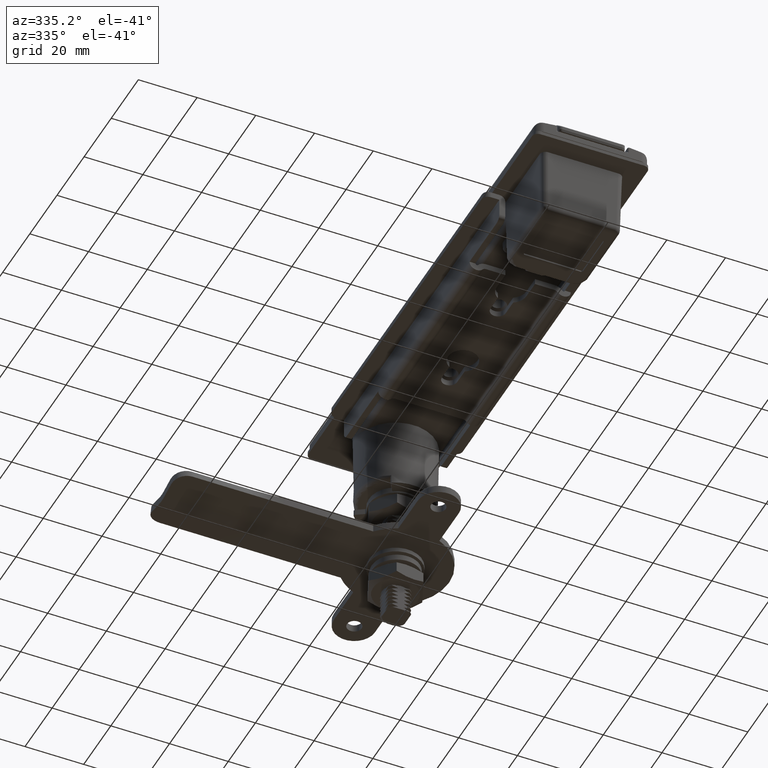
[diagram: clean part render]
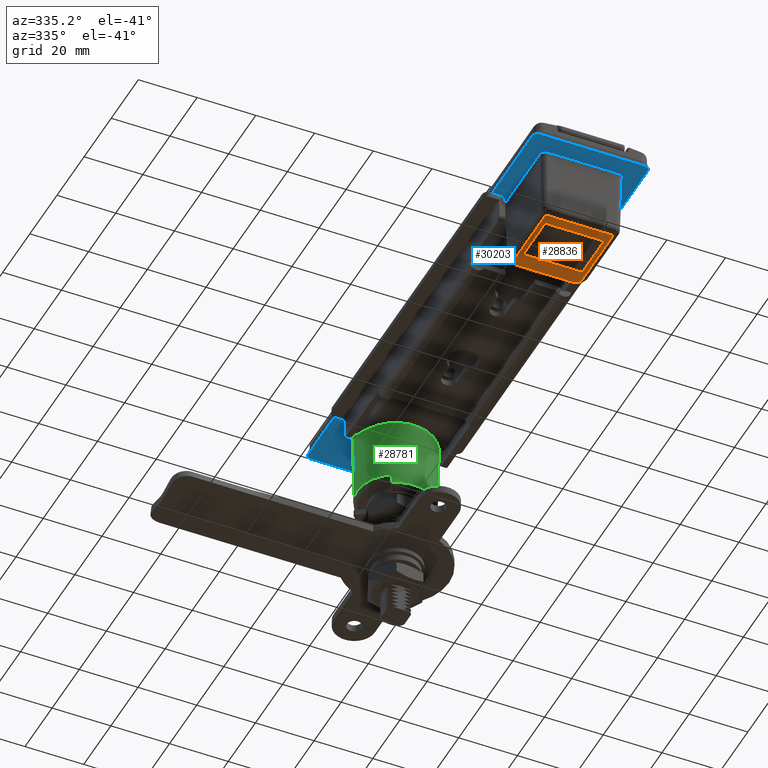
[diagram: same view with three faces highlighted in distinct colors, each labeled with its STEP entity id]
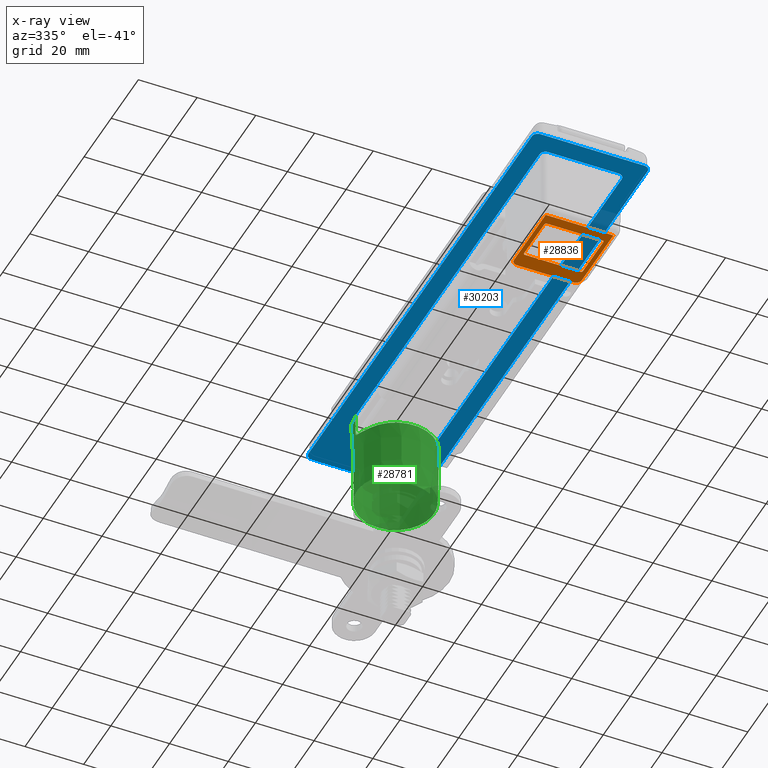
[diagram: x-ray of the same camera — body ghosted, the three highlighted faces saturated]
A machine part, auxiliary view with three faces highlighted in distinct colors.
The next image is the same camera in x-ray (body ghosted, the three faces saturated) — at least one of them is partly hidden behind the body in this view.
Their STEP definitions:

[orange] entity #28836 — the highlighted planar face has unit normal (0, 0, -1).
#2609=FACE_BOUND('',#5051,.T.);
#2722=ELLIPSE('',#30665,1.90065116860547,1.9);
#2728=ELLIPSE('',#30677,1.90065116860547,1.9);
#2918=PLANE('',#30713);
#3273=FACE_OUTER_BOUND('',#5050,.T.);
#5050=EDGE_LOOP('',(#19204,#19205,#19206,#19207,#19208,#19209));
#5051=EDGE_LOOP('',(#19210,#19211,#19212,#19213,#19214,#19215,#19216,#19217));
#6842=LINE('',#39239,#8618);
#6849=LINE('',#39257,#8625);
#6853=LINE('',#39269,#8629);
#6855=LINE('',#39276,#8631);
#6936=LINE('',#40492,#8712);
#6956=LINE('',#40864,#8732);
#6957=LINE('',#40869,#8733);
#6958=LINE('',#40871,#8734);
#8618=VECTOR('',#32859,19.0565076735056);
#8625=VECTOR('',#32874,19.0565076735056);
#8629=VECTOR('',#32886,15.184331811677);
#8631=VECTOR('',#32898,15.184331811677);
#8712=VECTOR('',#33173,19.2569243691889);
#8732=VECTOR('',#33293,23.385113118585);
#8733=VECTOR('',#33300,23.385113118585);
#8734=VECTOR('',#33303,23.0565076735055);
#10393=CIRCLE('',#30548,0.5);
#10395=CIRCLE('',#30552,0.5);
#10397=CIRCLE('',#30556,0.5);
#10399=CIRCLE('',#30560,0.5);
#11279=VERTEX_POINT('',#39232);
#11280=VERTEX_POINT('',#39234);
#11281=VERTEX_POINT('',#39238);
#11285=VERTEX_POINT('',#39247);
#11286=VERTEX_POINT('',#39249);
#11288=VERTEX_POINT('',#39255);
#11290=VERTEX_POINT('',#39261);
#11292=VERTEX_POINT('',#39267);
#11438=VERTEX_POINT('',#40489);
#11439=VERTEX_POINT('',#40491);
#11442=VERTEX_POINT('',#40564);
#11452=VERTEX_POINT('',#40690);
#11464=VERTEX_POINT('',#40863);
#11465=VERTEX_POINT('',#40867);
#14214=EDGE_CURVE('',#11279,#11280,#10393,.T.);
#14216=EDGE_CURVE('',#11281,#11280,#6842,.T.);
#14221=EDGE_CURVE('',#11285,#11286,#10395,.T.);
#14225=EDGE_CURVE('',#11285,#11288,#6849,.T.);
#14228=EDGE_CURVE('',#11290,#11288,#10397,.T.);
#14231=EDGE_CURVE('',#11290,#11292,#6853,.T.);
#14233=EDGE_CURVE('',#11281,#11292,#10399,.T.);
#14235=EDGE_CURVE('',#11279,#11286,#6855,.T.);
#14408=EDGE_CURVE('',#11439,#11438,#6936,.T.);
#14416=EDGE_CURVE('',#11442,#11439,#2722,.T.);
#14432=EDGE_CURVE('',#11438,#11452,#2728,.T.);
#14463=EDGE_CURVE('',#11464,#11442,#6956,.T.);
#14466=EDGE_CURVE('',#11452,#11465,#6957,.T.);
#14467=EDGE_CURVE('',#11465,#11464,#6958,.T.);
#19204=ORIENTED_EDGE('',*,*,#14466,.T.);
#19205=ORIENTED_EDGE('',*,*,#14467,.T.);
#19206=ORIENTED_EDGE('',*,*,#14463,.T.);
#19207=ORIENTED_EDGE('',*,*,#14416,.T.);
#19208=ORIENTED_EDGE('',*,*,#14408,.T.);
#19209=ORIENTED_EDGE('',*,*,#14432,.T.);
#19210=ORIENTED_EDGE('',*,*,#14225,.T.);
#19211=ORIENTED_EDGE('',*,*,#14228,.F.);
#19212=ORIENTED_EDGE('',*,*,#14231,.T.);
#19213=ORIENTED_EDGE('',*,*,#14233,.F.);
#19214=ORIENTED_EDGE('',*,*,#14216,.T.);
#19215=ORIENTED_EDGE('',*,*,#14214,.F.);
#19216=ORIENTED_EDGE('',*,*,#14235,.T.);
#19217=ORIENTED_EDGE('',*,*,#14221,.F.);
#28836=ADVANCED_FACE('',(#3273,#2609),#2918,.T.);
#30548=AXIS2_PLACEMENT_3D('',#39235,#32854,#32855);
#30552=AXIS2_PLACEMENT_3D('',#39250,#32867,#32868);
#30556=AXIS2_PLACEMENT_3D('',#39263,#32880,#32881);
#30560=AXIS2_PLACEMENT_3D('',#39272,#32891,#32892);
#30665=AXIS2_PLACEMENT_3D('',#40565,#33186,#33187);
#30677=AXIS2_PLACEMENT_3D('',#40692,#33213,#33214);
#30713=AXIS2_PLACEMENT_3D('',#40870,#33301,#33302);
#32854=DIRECTION('center_axis',(0.,0.,1.));
#32855=DIRECTION('ref_axis',(0.707106781186552,-0.707106781186543,0.));
#32859=DIRECTION('',(0.,-1.,0.));
#32867=DIRECTION('center_axis',(0.,0.,1.));
#32868=DIRECTION('ref_axis',(-0.707106781186552,-0.707106781186543,0.));
#32874=DIRECTION('',(0.,1.,0.));
#32880=DIRECTION('center_axis',(0.,0.,1.));
#32881=DIRECTION('ref_axis',(-0.707106781186552,0.707106781186543,0.));
#32886=DIRECTION('',(1.,0.,0.));
#32891=DIRECTION('center_axis',(0.,0.,1.));
#32892=DIRECTION('ref_axis',(0.707106781186552,0.707106781186543,0.));
#32898=DIRECTION('',(-1.,0.,0.));
#33173=DIRECTION('',(0.,1.,0.));
#33186=DIRECTION('center_axis',(0.,0.,1.));
#33187=DIRECTION('ref_axis',(0.599975431659453,-0.800018425665968,0.));
#33213=DIRECTION('center_axis',(0.,0.,1.));
#33214=DIRECTION('ref_axis',(-0.599975431659455,-0.800018425665966,0.));
#33293=DIRECTION('',(1.,0.,0.));
#33300=DIRECTION('',(-1.,0.,0.));
#33301=DIRECTION('center_axis',(0.,0.,1.));
#33302=DIRECTION('ref_axis',(-1.,0.,0.));
#33303=DIRECTION('',(0.,-1.,0.));
#39232=CARTESIAN_POINT('',(-116.396612457025,-10.0282538367527,-7.90000000000001));
#39234=CARTESIAN_POINT('',(-115.896612457025,-9.52825383675271,-7.90000000000001));
#39235=CARTESIAN_POINT('Origin',(-116.396612457025,-9.52825383675271,-7.90000000000001));
#39238=CARTESIAN_POINT('',(-115.896612457025,9.52825383675286,-7.90000000000001));
#39239=CARTESIAN_POINT('',(-115.896612457025,-18.7858730816235,-7.90000000000001));
#39247=CARTESIAN_POINT('',(-132.080944268702,-9.52825383675271,-7.90000000000001));
#39249=CARTESIAN_POINT('',(-131.580944268702,-10.0282538367527,-7.90000000000001));
#39250=CARTESIAN_POINT('Origin',(-131.580944268702,-9.52825383675271,-7.90000000000001));
#39255=CARTESIAN_POINT('',(-132.080944268702,9.52825383675286,-7.90000000000001));
#39257=CARTESIAN_POINT('',(-132.080944268702,-28.8141269183763,-7.90000000000001));
#39261=CARTESIAN_POINT('',(-131.580944268702,10.0282538367529,-7.90000000000001));
#39263=CARTESIAN_POINT('Origin',(-131.580944268702,9.52825383675287,-7.90000000000001));
#39267=CARTESIAN_POINT('',(-116.396612457025,10.0282538367529,-7.90000000000001));
#39269=CARTESIAN_POINT('',(-133.881139595429,10.0282538367529,-7.90000000000001));
#39272=CARTESIAN_POINT('Origin',(-116.396612457025,9.52825383675287,-7.90000000000001));
#39276=CARTESIAN_POINT('',(-125.788973689591,-10.0282538367527,-7.90000000000001));
#40489=CARTESIAN_POINT('',(-110.396612457025,9.62846218459451,-7.90000000000001));
#40491=CARTESIAN_POINT('',(-110.396612457025,-9.62846218459435,-7.90000000000001));
#40492=CARTESIAN_POINT('',(-110.396612457025,-47.5999999999999,-7.90000000000001));
#40564=CARTESIAN_POINT('',(-112.296221803571,-11.5282538367527,-7.90000000000001));
#40565=CARTESIAN_POINT('Origin',(-112.296846884231,-9.62783704394535,-7.90000000000001));
#40690=CARTESIAN_POINT('',(-112.296221803571,11.5282538367528,-7.90000000000001));
#40692=CARTESIAN_POINT('Origin',(-112.296846884231,9.6278370439455,-7.90000000000001));
#40863=CARTESIAN_POINT('',(-135.681334922156,-11.5282538367527,-7.90000000000001));
#40864=CARTESIAN_POINT('',(-135.681334922156,-11.5282538367527,-7.90000000000001));
#40867=CARTESIAN_POINT('',(-135.681334922156,11.5282538367528,-7.90000000000001));
#40869=CARTESIAN_POINT('',(-135.681334922156,11.5282538367528,-7.90000000000001));
#40870=CARTESIAN_POINT('Origin',(-135.681334922156,-47.5999999999999,-7.90000000000001));
#40871=CARTESIAN_POINT('',(-135.681334922156,-47.5999999999999,-7.90000000000001));

[blue] entity #30203 — the highlighted planar face has unit normal (0, 0, -1).
#2692=FACE_BOUND('',#6501,.T.);
#3137=PLANE('',#32257);
#4640=FACE_OUTER_BOUND('',#6500,.T.);
#6500=EDGE_LOOP('',(#26486,#26487,#26488,#26489,#26490,#26491,#26492,#26493));
#6501=EDGE_LOOP('',(#26494,#26495,#26496,#26497,#26498,#26499));
#8329=LINE('',#70136,#10105);
#8332=LINE('',#70147,#10108);
#8334=LINE('',#70151,#10110);
#8337=LINE('',#70158,#10113);
#8343=LINE('',#70174,#10119);
#8351=LINE('',#70202,#10127);
#8352=LINE('',#70206,#10128);
#10105=VECTOR('',#37710,136.5);
#10108=VECTOR('',#37721,24.0000000000004);
#10110=VECTOR('',#37725,136.5);
#10113=VECTOR('',#37730,164.8);
#10119=VECTOR('',#37744,35.4);
#10127=VECTOR('',#37776,35.4);
#10128=VECTOR('',#37783,164.8);
#10999=CIRCLE('',#32230,2.);
#11001=CIRCLE('',#32234,2.);
#11003=CIRCLE('',#32240,1.99999999999999);
#11005=CIRCLE('',#32244,2.);
#11009=CIRCLE('',#32250,2.);
#11010=CIRCLE('',#32252,2.);
#11011=CIRCLE('',#32255,14.);
#13744=VERTEX_POINT('',#70126);
#13745=VERTEX_POINT('',#70128);
#13747=VERTEX_POINT('',#70134);
#13750=VERTEX_POINT('',#70141);
#13751=VERTEX_POINT('',#70143);
#13752=VERTEX_POINT('',#70150);
#13754=VERTEX_POINT('',#70156);
#13755=VERTEX_POINT('',#70157);
#13759=VERTEX_POINT('',#70167);
#13761=VERTEX_POINT('',#70173);
#13763=VERTEX_POINT('',#70179);
#13767=VERTEX_POINT('',#70192);
#13768=VERTEX_POINT('',#70194);
#13769=VERTEX_POINT('',#70198);
#18014=EDGE_CURVE('',#13744,#13745,#10999,.T.);
#18018=EDGE_CURVE('',#13744,#13747,#8329,.T.);
#18021=EDGE_CURVE('',#13750,#13751,#11001,.T.);
#18023=EDGE_CURVE('',#13750,#13745,#8332,.T.);
#18025=EDGE_CURVE('',#13752,#13751,#8334,.T.);
#18028=EDGE_CURVE('',#13754,#13755,#8337,.T.);
#18033=EDGE_CURVE('',#13759,#13754,#11003,.T.);
#18036=EDGE_CURVE('',#13761,#13759,#8343,.T.);
#18039=EDGE_CURVE('',#13763,#13761,#11005,.T.);
#18047=EDGE_CURVE('',#13768,#13767,#11009,.T.);
#18050=EDGE_CURVE('',#13755,#13769,#11010,.T.);
#18051=EDGE_CURVE('',#13769,#13768,#8351,.T.);
#18052=EDGE_CURVE('',#13747,#13752,#11011,.T.);
#18053=EDGE_CURVE('',#13767,#13763,#8352,.T.);
#26486=ORIENTED_EDGE('',*,*,#18028,.T.);
#26487=ORIENTED_EDGE('',*,*,#18050,.T.);
#26488=ORIENTED_EDGE('',*,*,#18051,.T.);
#26489=ORIENTED_EDGE('',*,*,#18047,.T.);
#26490=ORIENTED_EDGE('',*,*,#18053,.T.);
#26491=ORIENTED_EDGE('',*,*,#18039,.T.);
#26492=ORIENTED_EDGE('',*,*,#18036,.T.);
#26493=ORIENTED_EDGE('',*,*,#18033,.T.);
#26494=ORIENTED_EDGE('',*,*,#18023,.T.);
#26495=ORIENTED_EDGE('',*,*,#18014,.F.);
#26496=ORIENTED_EDGE('',*,*,#18018,.T.);
#26497=ORIENTED_EDGE('',*,*,#18052,.T.);
#26498=ORIENTED_EDGE('',*,*,#18025,.T.);
#26499=ORIENTED_EDGE('',*,*,#18021,.F.);
#30203=ADVANCED_FACE('',(#4640,#2692),#3137,.T.);
#32230=AXIS2_PLACEMENT_3D('',#70129,#37703,#37704);
#32234=AXIS2_PLACEMENT_3D('',#70144,#37716,#37717);
#32240=AXIS2_PLACEMENT_3D('',#70168,#37738,#37739);
#32244=AXIS2_PLACEMENT_3D('',#70180,#37750,#37751);
#32250=AXIS2_PLACEMENT_3D('',#70195,#37766,#37767);
#32252=AXIS2_PLACEMENT_3D('',#70200,#37772,#37773);
#32255=AXIS2_PLACEMENT_3D('',#70204,#37779,#37780);
#32257=AXIS2_PLACEMENT_3D('',#70207,#37784,#37785);
#37703=DIRECTION('center_axis',(0.,0.,1.));
#37704=DIRECTION('ref_axis',(-0.707106781186537,0.707106781186559,0.));
#37710=DIRECTION('',(1.,-9.63118473862323E-15,0.));
#37716=DIRECTION('center_axis',(0.,0.,1.));
#37717=DIRECTION('ref_axis',(-0.70710678118655,-0.707106781186545,0.));
#37721=DIRECTION('',(9.63118473862323E-15,1.,0.));
#37725=DIRECTION('',(-1.,9.60993645107059E-15,0.));
#37730=DIRECTION('',(1.,-9.63118473862323E-15,0.));
#37738=DIRECTION('center_axis',(0.,0.,1.));
#37739=DIRECTION('ref_axis',(-1.,9.63118473862323E-15,0.));
#37744=DIRECTION('',(-9.63118473862323E-15,-1.,0.));
#37750=DIRECTION('center_axis',(0.,0.,1.));
#37751=DIRECTION('ref_axis',(9.63118473862323E-15,1.,0.));
#37766=DIRECTION('center_axis',(0.,0.,1.));
#37767=DIRECTION('ref_axis',(1.,-9.63118473862323E-15,0.));
#37772=DIRECTION('center_axis',(0.,0.,1.));
#37773=DIRECTION('ref_axis',(-9.63118473862323E-15,-1.,0.));
#37776=DIRECTION('',(9.63118473862323E-15,1.,0.));
#37779=DIRECTION('center_axis',(0.,0.,-1.));
#37780=DIRECTION('ref_axis',(1.,-9.63118473862323E-15,0.));
#37783=DIRECTION('',(-1.,9.63118473862323E-15,0.));
#37784=DIRECTION('center_axis',(0.,0.,1.));
#37785=DIRECTION('ref_axis',(1.,-9.63118473862323E-15,0.));
#70126=CARTESIAN_POINT('',(-136.65,14.0000000000011,-31.2));
#70128=CARTESIAN_POINT('',(-138.65,12.0000000000015,-31.2));
#70129=CARTESIAN_POINT('Origin',(-136.65,12.0000000000015,-31.2));
#70134=CARTESIAN_POINT('',(-0.149999999999871,14.0000000000002,-31.2));
#70136=CARTESIAN_POINT('',(-30.1499999999999,14.0000000000001,-31.2));
#70141=CARTESIAN_POINT('',(-138.65,-11.9999999999989,-31.2));
#70143=CARTESIAN_POINT('',(-136.65,-13.9999999999985,-31.2));
#70144=CARTESIAN_POINT('Origin',(-136.65,-11.9999999999989,-31.2));
#70147=CARTESIAN_POINT('',(-138.65,10.0000000000011,-31.2));
#70150=CARTESIAN_POINT('',(-0.150000000000141,-13.9999999999998,-31.2));
#70151=CARTESIAN_POINT('',(-90.6500000000001,-13.9999999999989,-31.2));
#70156=CARTESIAN_POINT('',(-143.35,-19.6999999999988,-31.2));
#70157=CARTESIAN_POINT('',(21.4499999999998,-19.7,-31.2));
#70158=CARTESIAN_POINT('',(-22.5500000000002,-19.7,-31.2));
#70167=CARTESIAN_POINT('',(-145.35,-17.6999999999988,-31.2));
#70168=CARTESIAN_POINT('Origin',(-143.35,-17.6999999999989,-31.2));
#70173=CARTESIAN_POINT('',(-145.35,17.7000000000012,-31.2));
#70174=CARTESIAN_POINT('',(-145.35,17.7000000000012,-31.2));
#70179=CARTESIAN_POINT('',(-143.35,19.7000000000011,-31.2));
#70180=CARTESIAN_POINT('Origin',(-143.35,17.7000000000011,-31.2));
#70192=CARTESIAN_POINT('',(21.4500000000002,19.7,-31.2));
#70194=CARTESIAN_POINT('',(23.4500000000002,17.7,-31.2));
#70195=CARTESIAN_POINT('Origin',(21.4500000000002,17.7,-31.2));
#70198=CARTESIAN_POINT('',(23.4499999999998,-17.7,-31.2));
#70200=CARTESIAN_POINT('Origin',(21.4499999999998,-17.7,-31.2));
#70202=CARTESIAN_POINT('',(23.4500000000002,17.7,-31.2));
#70204=CARTESIAN_POINT('Origin',(-0.149999999999999,1.93291270576129E-13,
-31.2));
#70206=CARTESIAN_POINT('',(21.4500000000002,19.7,-31.2));
#70207=CARTESIAN_POINT('Origin',(-38.95,5.69201684483961E-13,-31.2));

[green] entity #28781 — the highlighted conical surface has half-angle 1.1 deg.
#848=CONICAL_SURFACE('',#30599,13.6954884587247,0.0191986217719376);
#867=B_SPLINE_CURVE_WITH_KNOTS('',3,(#39607,#39608,#39609,#39610,#39611,
#39612),.UNSPECIFIED.,.F.,.F.,(4,2,4),(-1.7381351292261,-1.73326929905631,
-1.41257378452952),.UNSPECIFIED.);
#868=B_SPLINE_CURVE_WITH_KNOTS('',3,(#39614,#39615,#39616,#39617,#39618,
#39619,#39620,#39621,#39622,#39623,#39624,#39625,#39626,#39627),
 .UNSPECIFIED.,.F.,.F.,(4,2,2,2,2,2,4),(0.,0.137580714279203,0.248038541500351,
0.365612452164899,0.408043993676191,0.423945368888062,0.43893131847961),
 .UNSPECIFIED.);
#869=B_SPLINE_CURVE_WITH_KNOTS('',3,(#39632,#39633,#39634,#39635,#39636,
#39637,#39638,#39639,#39640,#39641,#39642,#39643,#39644,#39645),
 .UNSPECIFIED.,.F.,.F.,(4,2,2,2,2,2,4),(4.8702996071887,5.18187542756399,
5.70014412774425,6.21841282792452,6.73666066310534,7.25490849828615,7.56640840162399),
 .UNSPECIFIED.);
#870=B_SPLINE_CURVE_WITH_KNOTS('',3,(#39650,#39651,#39652,#39653,#39654,
#39655,#39656,#39657,#39658,#39659,#39660,#39661,#39662,#39663),
 .UNSPECIFIED.,.F.,.F.,(4,2,2,2,2,2,4),(1.01234511693813E-10,0.0095357451955097,
0.0196539853044007,0.0466537025884253,0.121467526471782,0.19175327475777,
0.279297646736448),.UNSPECIFIED.);
#871=B_SPLINE_CURVE_WITH_KNOTS('',3,(#39664,#39665,#39666,#39667,#39668,
#39669),.UNSPECIFIED.,.F.,.F.,(4,2,4),(-0.745763128982248,-0.425067614455492,
-0.4202017842857),.UNSPECIFIED.);
#2600=FACE_BOUND('',#4987,.T.);
#3218=FACE_OUTER_BOUND('',#4986,.T.);
#4986=EDGE_LOOP('',(#18928,#18929,#18930,#18931));
#4987=EDGE_LOOP('',(#18932,#18933,#18934,#18935,#18936,#18937,#18938,#18939,
#18940,#18941,#18942,#18943));
#6892=LINE('',#39599,#8668);
#6893=LINE('',#39602,#8669);
#6894=LINE('',#39628,#8670);
#6895=LINE('',#39648,#8671);
#8668=VECTOR('',#33011,3.0794503274102);
#8669=VECTOR('',#33014,3.07945032752392);
#8670=VECTOR('',#33017,8.03931897165114);
#8671=VECTOR('',#33022,8.03931897165114);
#10406=CIRCLE('',#30571,13.6954884587247);
#10409=CIRCLE('',#30576,13.6954884587247);
#10421=CIRCLE('',#30600,13.0406244268539);
#10422=CIRCLE('',#30601,13.0997419969703);
#10423=CIRCLE('',#30602,13.5034786496475);
#10424=CIRCLE('',#30603,1790.44050724897);
#10425=CIRCLE('',#30604,1790.82477306619);
#11307=VERTEX_POINT('',#39305);
#11308=VERTEX_POINT('',#39307);
#11315=VERTEX_POINT('',#39321);
#11316=VERTEX_POINT('',#39323);
#11359=VERTEX_POINT('',#39595);
#11360=VERTEX_POINT('',#39596);
#11361=VERTEX_POINT('',#39598);
#11362=VERTEX_POINT('',#39600);
#11363=VERTEX_POINT('',#39603);
#11364=VERTEX_POINT('',#39604);
#11365=VERTEX_POINT('',#39606);
#11366=VERTEX_POINT('',#39613);
#11367=VERTEX_POINT('',#39629);
#11368=VERTEX_POINT('',#39631);
#11369=VERTEX_POINT('',#39647);
#11370=VERTEX_POINT('',#39649);
#14250=EDGE_CURVE('',#11308,#11307,#10406,.T.);
#14258=EDGE_CURVE('',#11316,#11315,#10409,.T.);
#14306=EDGE_CURVE('',#11359,#11360,#10421,.T.);
#14307=EDGE_CURVE('',#11360,#11361,#6892,.T.);
#14308=EDGE_CURVE('',#11362,#11361,#10422,.T.);
#14309=EDGE_CURVE('',#11362,#11359,#6893,.T.);
#14310=EDGE_CURVE('',#11363,#11364,#10423,.T.);
#14311=EDGE_CURVE('',#11363,#11365,#867,.T.);
#14312=EDGE_CURVE('',#11365,#11366,#868,.T.);
#14313=EDGE_CURVE('',#11308,#11366,#6894,.T.);
#14314=EDGE_CURVE('',#11307,#11367,#10424,.T.);
#14315=EDGE_CURVE('',#11367,#11368,#869,.T.);
#14316=EDGE_CURVE('',#11368,#11316,#10425,.T.);
#14317=EDGE_CURVE('',#11369,#11315,#6895,.T.);
#14318=EDGE_CURVE('',#11369,#11370,#870,.T.);
#14319=EDGE_CURVE('',#11370,#11364,#871,.T.);
#18928=ORIENTED_EDGE('',*,*,#14306,.T.);
#18929=ORIENTED_EDGE('',*,*,#14307,.T.);
#18930=ORIENTED_EDGE('',*,*,#14308,.F.);
#18931=ORIENTED_EDGE('',*,*,#14309,.T.);
#18932=ORIENTED_EDGE('',*,*,#14310,.F.);
#18933=ORIENTED_EDGE('',*,*,#14311,.T.);
#18934=ORIENTED_EDGE('',*,*,#14312,.T.);
#18935=ORIENTED_EDGE('',*,*,#14313,.F.);
#18936=ORIENTED_EDGE('',*,*,#14250,.T.);
#18937=ORIENTED_EDGE('',*,*,#14314,.T.);
#18938=ORIENTED_EDGE('',*,*,#14315,.T.);
#18939=ORIENTED_EDGE('',*,*,#14316,.T.);
#18940=ORIENTED_EDGE('',*,*,#14258,.T.);
#18941=ORIENTED_EDGE('',*,*,#14317,.F.);
#18942=ORIENTED_EDGE('',*,*,#14318,.T.);
#18943=ORIENTED_EDGE('',*,*,#14319,.T.);
#28781=ADVANCED_FACE('',(#3218,#2600),#848,.T.);
#30571=AXIS2_PLACEMENT_3D('',#39308,#32922,#32923);
#30576=AXIS2_PLACEMENT_3D('',#39324,#32935,#32936);
#30599=AXIS2_PLACEMENT_3D('',#39594,#33007,#33008);
#30600=AXIS2_PLACEMENT_3D('',#39597,#33009,#33010);
#30601=AXIS2_PLACEMENT_3D('',#39601,#33012,#33013);
#30602=AXIS2_PLACEMENT_3D('',#39605,#33015,#33016);
#30603=AXIS2_PLACEMENT_3D('',#39630,#33018,#33019);
#30604=AXIS2_PLACEMENT_3D('',#39646,#33020,#33021);
#32922=DIRECTION('center_axis',(0.,0.,1.));
#32923=DIRECTION('ref_axis',(1.,0.,0.));
#32935=DIRECTION('center_axis',(0.,0.,1.));
#32936=DIRECTION('ref_axis',(1.,0.,0.));
#33007=DIRECTION('center_axis',(0.,0.,-1.));
#33008=DIRECTION('ref_axis',(1.,0.,0.));
#33009=DIRECTION('center_axis',(0.,0.,-1.));
#33010=DIRECTION('ref_axis',(1.,0.,0.));
#33011=DIRECTION('',(-0.0166264889114591,0.00959726926631518,-0.999815709162997));
#33012=DIRECTION('center_axis',(0.,0.,1.));
#33013=DIRECTION('ref_axis',(1.,0.,0.));
#33014=DIRECTION('',(0.0166264889114592,0.00959726926631488,0.999815709162997));
#33015=DIRECTION('center_axis',(0.,0.,-1.));
#33016=DIRECTION('ref_axis',(1.,0.,0.));
#33017=DIRECTION('',(0.,0.0191974423996897,0.999815712121644));
#33018=DIRECTION('center_axis',(0.0112231375031351,0.999783815501913,0.0175032409862642));
#33019=DIRECTION('ref_axis',(0.99790451662001,-0.0123141079900085,0.0635211654001587));
#33020=DIRECTION('center_axis',(0.0112252343600991,-0.999783789591544,0.0175033763466203));
#33021=DIRECTION('ref_axis',(0.997815186627062,0.0123394248249808,0.0649044831378418));
#33022=DIRECTION('',(0.,0.0191974423996897,-0.999815712121644));
#39305=CARTESIAN_POINT('',(7.04772291088647,-11.7429130071898,-32.4));
#39307=CARTESIAN_POINT('',(7.105427357601E-15,-13.6954884587247,-32.4));
#39308=CARTESIAN_POINT('Origin',(2.1316282072803E-14,4.85722573273506E-14,
-32.4));
#39321=CARTESIAN_POINT('',(7.105427357601E-15,13.6954884587247,-32.4));
#39323=CARTESIAN_POINT('',(7.04772291088639,11.7429130071899,-32.4));
#39324=CARTESIAN_POINT('Origin',(2.1316282072803E-14,4.85722573273506E-14,
-32.4));
#39594=CARTESIAN_POINT('Origin',(2.1316282072803E-14,4.85722573273506E-14,
-32.4));
#39595=CARTESIAN_POINT('',(-11.2678365105368,-6.56458268392359,1.70575923271991));
#39596=CARTESIAN_POINT('',(-11.2678365105368,6.56458268392374,1.70575923271993));
#39597=CARTESIAN_POINT('Origin',(2.1316282072803E-14,4.85722573273506E-14,
1.70575923271987));
#39598=CARTESIAN_POINT('',(-11.3190369575727,6.59413699804068,-1.37312358020543));
#39599=CARTESIAN_POINT('',(-11.2678365105368,6.56458268392374,1.70575923271993));
#39600=CARTESIAN_POINT('',(-11.3190369571436,-6.59413699811013,-1.37312358032566));
#39601=CARTESIAN_POINT('Origin',(2.1316282072803E-14,4.85722573273506E-14,
-1.37312358064042));
#39602=CARTESIAN_POINT('',(-11.319036957266,-6.5941369979121,-1.37312358064042));
#39603=CARTESIAN_POINT('',(-6.50753823343091,-11.8319855384428,-22.4));
#39604=CARTESIAN_POINT('',(-6.50753823343087,11.8319855384429,-22.4));
#39605=CARTESIAN_POINT('Origin',(2.1316282072803E-14,4.85722573273506E-14,
-22.4));
#39606=CARTESIAN_POINT('',(-3.39610637269272,-13.078087449172,-22.8356375010641));
#39607=CARTESIAN_POINT('Ctrl Pts',(-6.50753823343089,-11.8319855384428,
-22.4));
#39608=CARTESIAN_POINT('Ctrl Pts',(-6.49318901301336,-11.8398775444111,
-22.4));
#39609=CARTESIAN_POINT('Ctrl Pts',(-6.47889256646308,-11.8477075436534,
-22.4000467149617));
#39610=CARTESIAN_POINT('Ctrl Pts',(-5.52620103473544,-12.3673327619277,
-22.4061496945067));
#39611=CARTESIAN_POINT('Ctrl Pts',(-4.4775116361633,-12.792760354204,-22.6083585689341));
#39612=CARTESIAN_POINT('Ctrl Pts',(-3.39610637269271,-13.078087449172,-22.8356375010641));
#39613=CARTESIAN_POINT('',(2.18591746736204E-7,-13.5411540835551,-24.3621625776212));
#39614=CARTESIAN_POINT('Ctrl Pts',(-3.39610637269273,-13.078087449172,-22.8356375010642));
#39615=CARTESIAN_POINT('Ctrl Pts',(-2.96156098277657,-13.1927415740309,
-22.9269659177968));
#39616=CARTESIAN_POINT('Ctrl Pts',(-2.52211201196767,-13.2854368103745,
-23.0327810445925));
#39617=CARTESIAN_POINT('Ctrl Pts',(-1.74299083871908,-13.4117198888069,
-23.2571796164283));
#39618=CARTESIAN_POINT('Ctrl Pts',(-1.38917231208199,-13.4546649807297,
-23.3721476296543));
#39619=CARTESIAN_POINT('Ctrl Pts',(-0.708841389251933,-13.5134878536296,
-23.6502672025168));
#39620=CARTESIAN_POINT('Ctrl Pts',(-0.416318824755451,-13.5253520587797,
-23.8048406638364));
#39621=CARTESIAN_POINT('Ctrl Pts',(-0.160694641969633,-13.5339244251427,
-24.0264711487642));
#39622=CARTESIAN_POINT('Ctrl Pts',(-0.0947186075610908,-13.5357925004937,
-24.0965710608747));
#39623=CARTESIAN_POINT('Ctrl Pts',(-0.0351286383493828,-13.5380997662878,
-24.2049569696783));
#39624=CARTESIAN_POINT('Ctrl Pts',(-0.0218836957936618,-13.5387176023885,
-24.2360347301038));
#39625=CARTESIAN_POINT('Ctrl Pts',(-0.00446244390715956,-13.5399465920907,
-24.2991758468179));
#39626=CARTESIAN_POINT('Ctrl Pts',(4.3729835979806E-7,-13.5405438888177,
-24.3303825855782));
#39627=CARTESIAN_POINT('Ctrl Pts',(4.419344552333E-7,-13.5411540958336,
-24.3621625773854));
#39628=CARTESIAN_POINT('',(7.105427357601E-15,4.85722573273506E-14,680.87025033475));
#39629=CARTESIAN_POINT('',(7.20763291286729,-11.7013431698381,-34.8770008349686));
#39630=CARTESIAN_POINT('Origin',(-1779.48103601031,10.3463345861145,-148.607868435075));
#39631=CARTESIAN_POINT('',(7.20855795841105,11.7010999761145,-34.8914851227017));
#39632=CARTESIAN_POINT('Ctrl Pts',(7.20763291286729,-11.7013431698381,-34.8770008349687));
#39633=CARTESIAN_POINT('Ctrl Pts',(8.13875100450335,-11.128953931452,-34.927912221104));
#39634=CARTESIAN_POINT('Ctrl Pts',(8.98784075231588,-10.4509563791682,-34.9843104099707));
#39635=CARTESIAN_POINT('Ctrl Pts',(10.9427319450896,-8.49924356382955,-35.1285133639137));
#39636=CARTESIAN_POINT('Ctrl Pts',(12.0017694482123,-6.95499269452971,-35.2245195853911));
#39637=CARTESIAN_POINT('Ctrl Pts',(13.4069779166818,-3.56920636099772,-35.3606713299668));
#39638=CARTESIAN_POINT('Ctrl Pts',(13.7530704972954,-1.72756200646389,-35.3989112976793));
#39639=CARTESIAN_POINT('Ctrl Pts',(13.7531113369838,1.72749245647899,-35.4010382561173));
#39640=CARTESIAN_POINT('Ctrl Pts',(13.4070865712039,3.56912150175563,-35.3650684207604));
#39641=CARTESIAN_POINT('Ctrl Pts',(12.0019857608637,6.95494391178785,-35.2330954151284));
#39642=CARTESIAN_POINT('Ctrl Pts',(10.942986519902,8.4992431686656,-35.1389981460883));
#39643=CARTESIAN_POINT('Ctrl Pts',(8.98829217556175,10.4508738020975,-34.9972229032361));
#39644=CARTESIAN_POINT('Ctrl Pts',(8.13942381178303,11.1287644374947,-34.9416777438301));
#39645=CARTESIAN_POINT('Ctrl Pts',(7.20855795841107,11.7010999761145,-34.8914851227017));
#39646=CARTESIAN_POINT('Origin',(-1779.86443224252,-10.3548346547617,-148.632556286304));
#39647=CARTESIAN_POINT('',(2.18595091283128E-7,13.5411540835549,-24.3621625776212));
#39648=CARTESIAN_POINT('',(7.105427357601E-15,4.85722573273506E-14,680.87025033475));
#39649=CARTESIAN_POINT('',(-3.39610637269297,13.078087449172,-22.835637501064));
#39650=CARTESIAN_POINT('Ctrl Pts',(4.41941228704163E-7,13.5411540958337,
-24.3621625773854));
#39651=CARTESIAN_POINT('Ctrl Pts',(4.37305068727714E-7,13.5405438894429,
-24.3303826181337));
#39652=CARTESIAN_POINT('Ctrl Pts',(-0.00446243475290868,13.5399465933022,
-24.2991759102887));
#39653=CARTESIAN_POINT('Ctrl Pts',(-0.0218836513045069,13.5387176049242,
-24.2360348590657));
#39654=CARTESIAN_POINT('Ctrl Pts',(-0.035128565997972,13.5380997695359,
-24.2049571310508));
#39655=CARTESIAN_POINT('Ctrl Pts',(-0.0947184293295116,13.5357925061914,
-24.0965713049964));
#39656=CARTESIAN_POINT('Ctrl Pts',(-0.160694362509385,13.5339244335627,
-24.0264714368374));
#39657=CARTESIAN_POINT('Ctrl Pts',(-0.41631843073229,13.5253520745679,-23.8048408753501));
#39658=CARTESIAN_POINT('Ctrl Pts',(-0.708841106449955,13.513487874747,-23.6502673235958));
#39659=CARTESIAN_POINT('Ctrl Pts',(-1.3891722377873,13.4546649901414,-23.3721476473771));
#39660=CARTESIAN_POINT('Ctrl Pts',(-1.74299083503423,13.4117198909985,-23.2571796118907));
#39661=CARTESIAN_POINT('Ctrl Pts',(-2.52211205546618,13.2854368012106,-23.0327810324609));
#39662=CARTESIAN_POINT('Ctrl Pts',(-2.96156100441707,13.1927415683212,-22.926965913246));
#39663=CARTESIAN_POINT('Ctrl Pts',(-3.39610637269297,13.078087449172,-22.835637501064));
#39664=CARTESIAN_POINT('Ctrl Pts',(-3.39610637269298,13.078087449172,-22.835637501064));
#39665=CARTESIAN_POINT('Ctrl Pts',(-4.47751163616347,12.7927603542041,-22.608358568934));
#39666=CARTESIAN_POINT('Ctrl Pts',(-5.52620103473551,12.3673327619278,-22.4061496945067));
#39667=CARTESIAN_POINT('Ctrl Pts',(-6.47889256646307,11.8477075436535,-22.4000467149617));
#39668=CARTESIAN_POINT('Ctrl Pts',(-6.49318901301334,11.8398775444112,-22.4));
#39669=CARTESIAN_POINT('Ctrl Pts',(-6.50753823343086,11.8319855384429,-22.4));